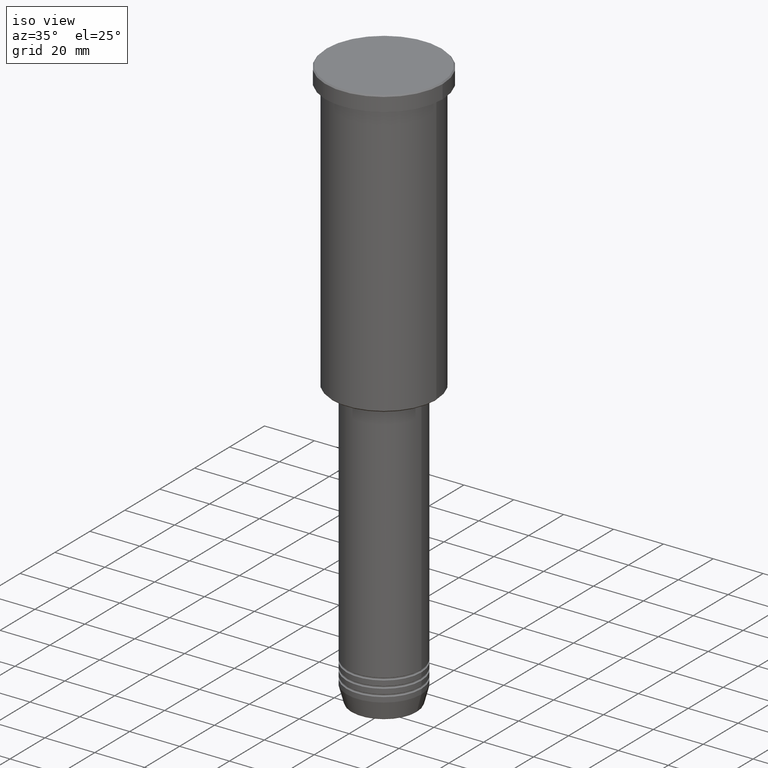
[diagram: clean part render]
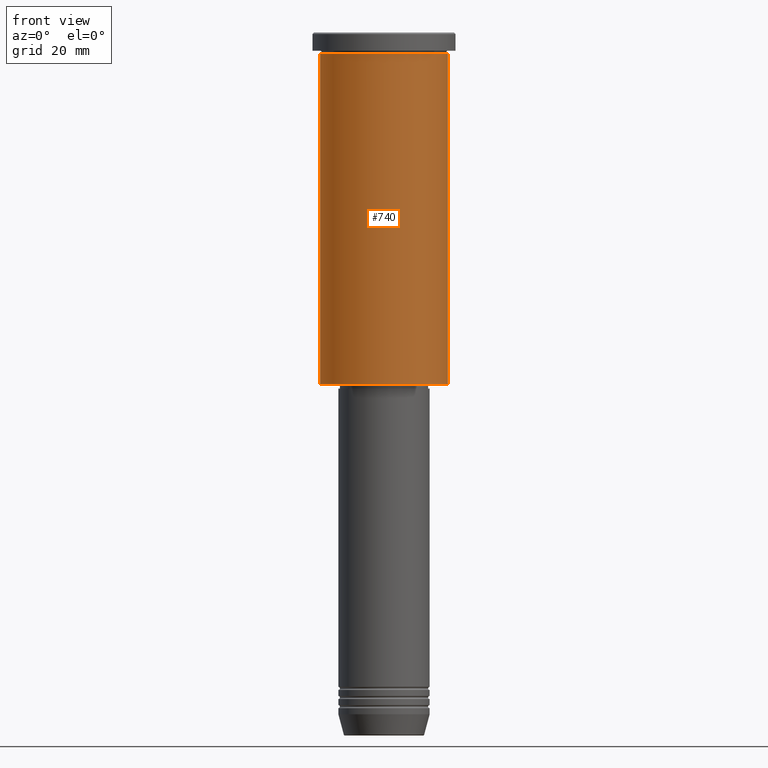
[diagram: tour spotlight — one face highlighted and labeled with its STEP entity id]
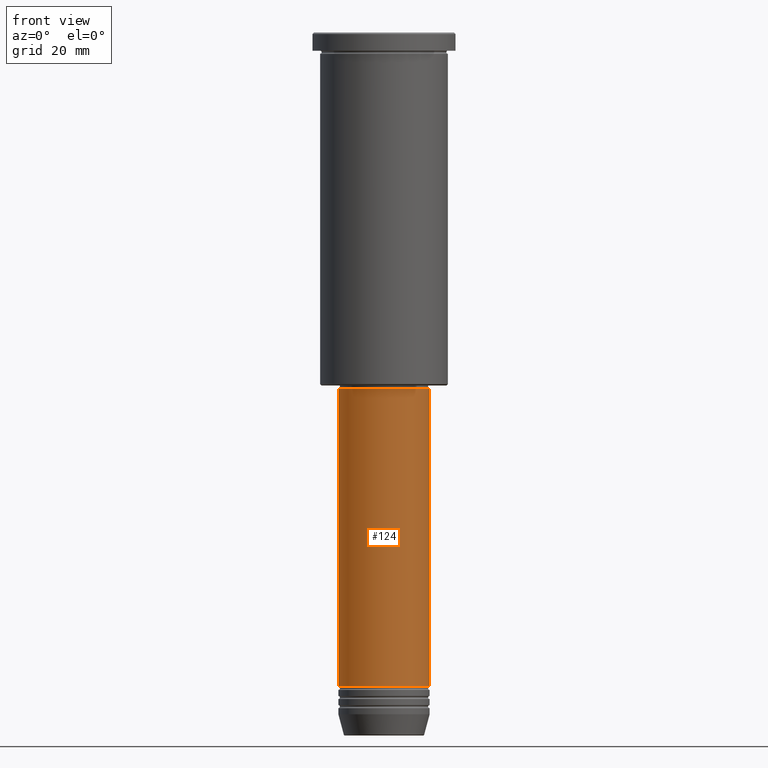
[diagram: tour spotlight — one face highlighted and labeled with its STEP entity id]
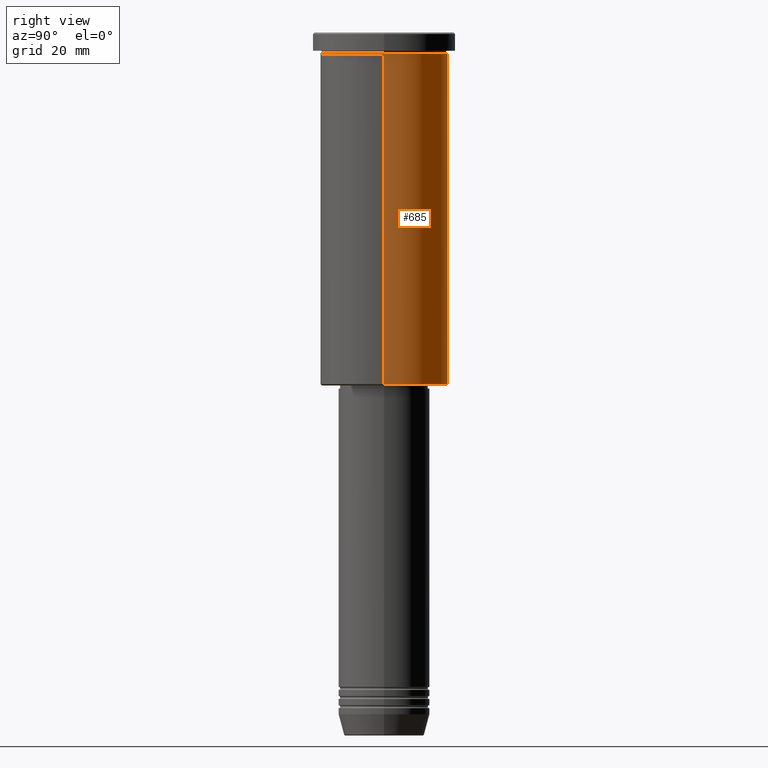
[diagram: tour spotlight — one face highlighted and labeled with its STEP entity id]
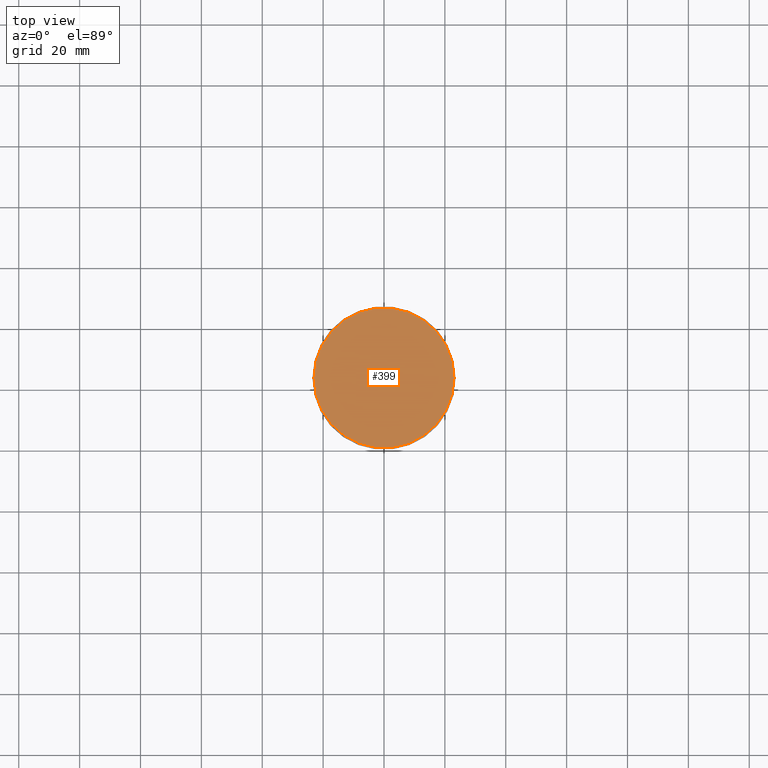
[diagram: tour spotlight — one face highlighted and labeled with its STEP entity id]
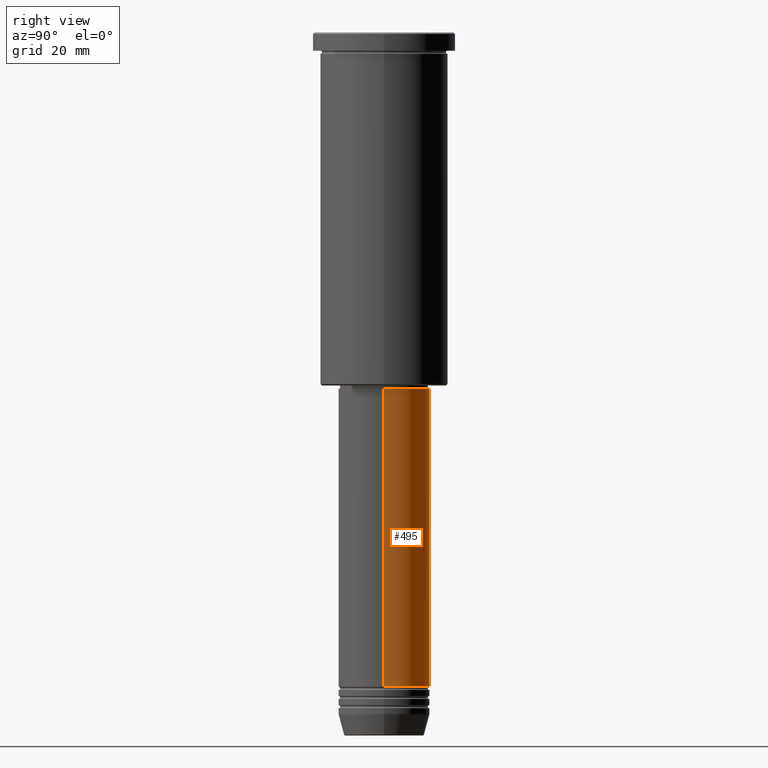
[diagram: tour spotlight — one face highlighted and labeled with its STEP entity id]
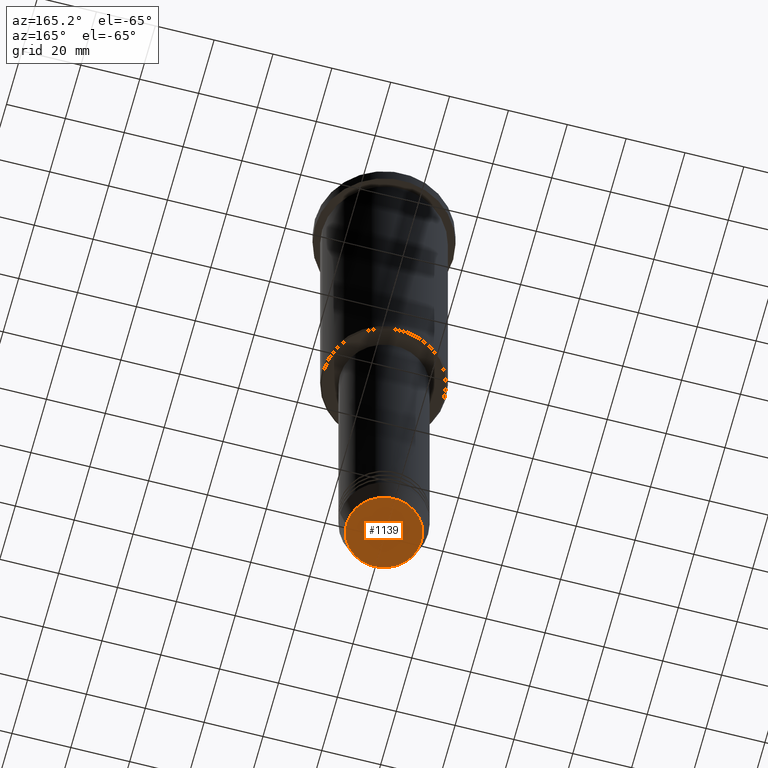
[diagram: tour spotlight — one face highlighted and labeled with its STEP entity id]
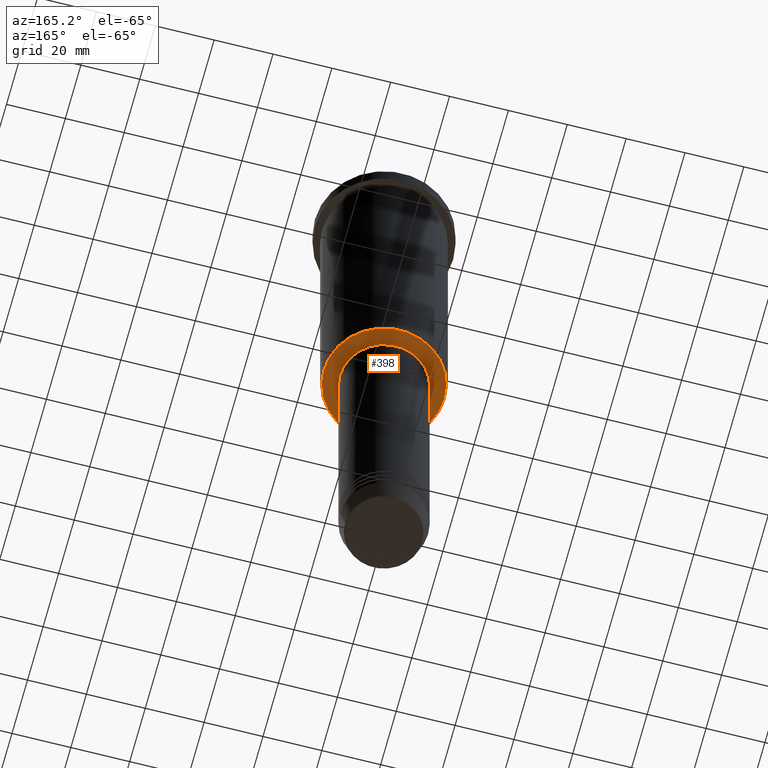
[diagram: tour spotlight — one face highlighted and labeled with its STEP entity id]
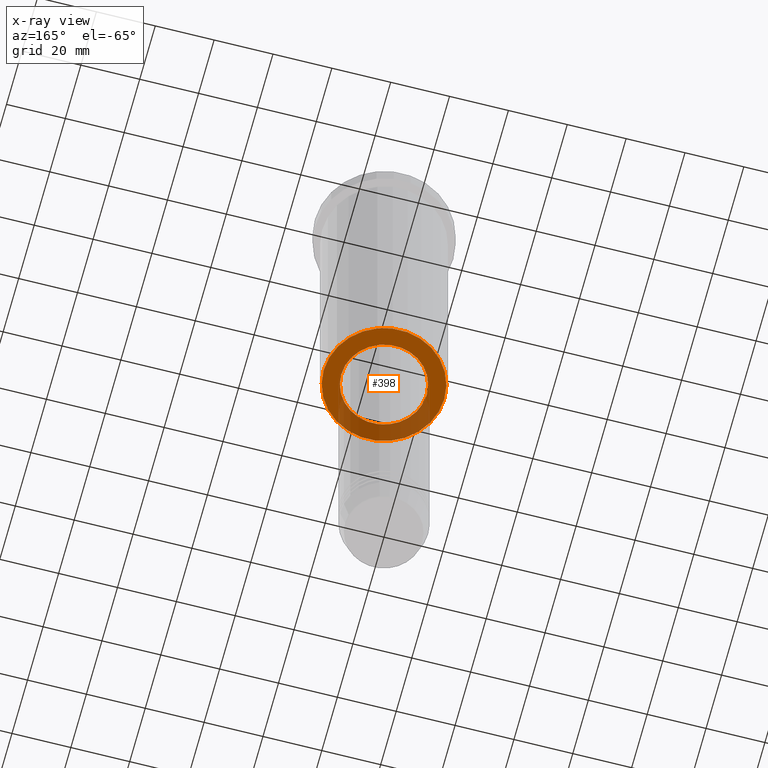
[diagram: x-ray of the same camera — body ghosted, this tour face saturated]
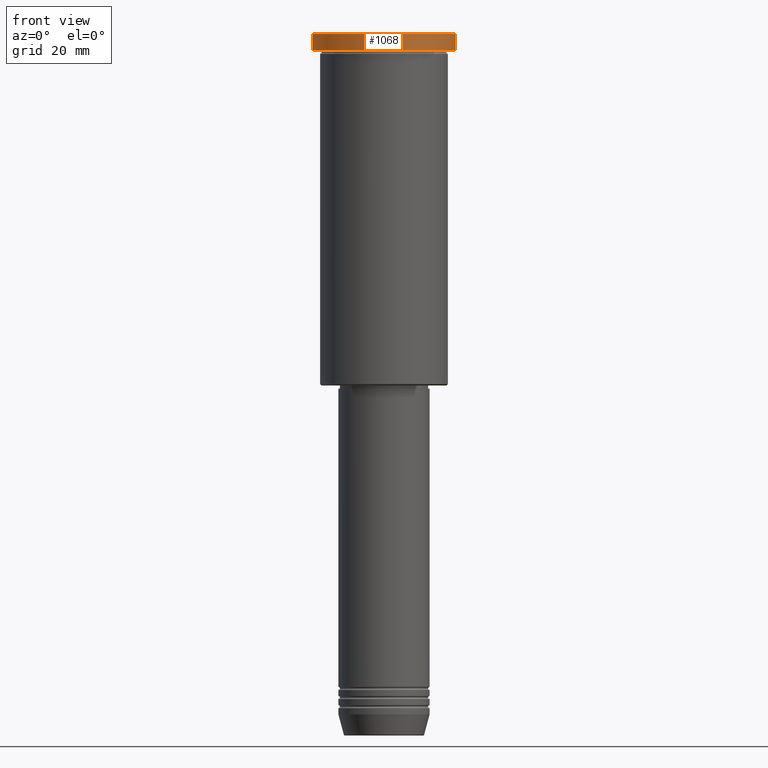
[diagram: tour spotlight — one face highlighted and labeled with its STEP entity id]
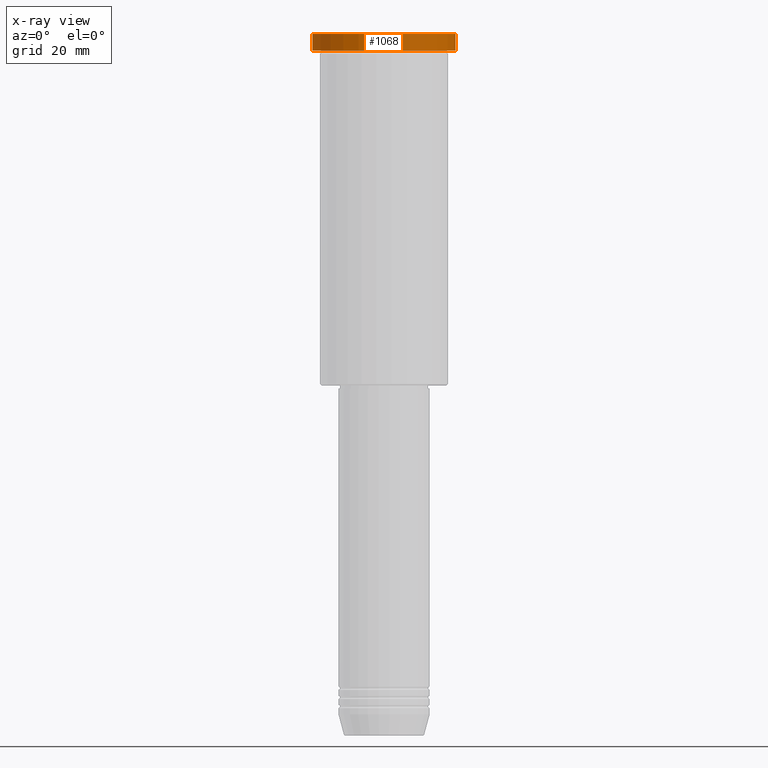
[diagram: x-ray of the same camera — body ghosted, this tour face saturated]
A machine part: a face-by-face anatomy tour. The part has 43 B-rep faces; the first image is the clean iso view, then the 8 largest visible faces are spotlighted one at a time (largest first), each with its STEP entity span.

Face 1 — front view, entity #740. In plain terms, the highlighted cylindrical surface (partial cylindrical patch) has radius 21 mm, axis along (-0, -0, 1).
Definition (entity closure, byte-faithful):
#55 = CIRCLE ( 'NONE', #469, 21.00000000000000000 ) ;
#112 = DIRECTION ( 'NONE',  ( 1.000000000000000000, 0.000000000000000000, 0.000000000000000000 ) ) ;
#128 = DIRECTION ( 'NONE',  ( -0.000000000000000000, -0.000000000000000000, 1.000000000000000000 ) ) ;
#139 = AXIS2_PLACEMENT_3D ( 'NONE', #757, #678, #220 ) ;
#184 = VECTOR ( 'NONE', #253, 1000.000000000000000 ) ;
#203 = AXIS2_PLACEMENT_3D ( 'NONE', #601, #346, #431 ) ;
#220 = DIRECTION ( 'NONE',  ( -1.000000000000000000, 0.000000000000000000, 0.000000000000000000 ) ) ;
#245 = CYLINDRICAL_SURFACE ( 'NONE', #203, 21.00000000000000000 ) ;
#247 = CARTESIAN_POINT ( 'NONE',  ( 21.00000000000000000, 0.000000000000000000, -115.4999999999999858 ) ) ;
#253 = DIRECTION ( 'NONE',  ( -0.000000000000000000, -0.000000000000000000, 1.000000000000000000 ) ) ;
#272 = VERTEX_POINT ( 'NONE', #247 ) ;
#294 = ORIENTED_EDGE ( 'NONE', *, *, #626, .T. ) ;
#320 = LINE ( 'NONE', #762, #812 ) ;
#325 = CARTESIAN_POINT ( 'NONE',  ( -21.00000000000000000, 2.571758278209441661E-15, 0.000000000000000000 ) ) ;
#345 = CARTESIAN_POINT ( 'NONE',  ( -21.00000000000000000, 2.571758278209441661E-15, -6.999999999999994671 ) ) ;
#346 = DIRECTION ( 'NONE',  ( -0.000000000000000000, -0.000000000000000000, 1.000000000000000000 ) ) ;
#431 = DIRECTION ( 'NONE',  ( 1.000000000000000000, 0.000000000000000000, 0.000000000000000000 ) ) ;
#469 = AXIS2_PLACEMENT_3D ( 'NONE', #487, #671, #112 ) ;
#487 = CARTESIAN_POINT ( 'NONE',  ( 0.000000000000000000, 0.000000000000000000, -6.999999999999994671 ) ) ;
#568 = EDGE_CURVE ( 'NONE', #1135, #581, #55, .T. ) ;
#581 = VERTEX_POINT ( 'NONE', #683 ) ;
#588 = ORIENTED_EDGE ( 'NONE', *, *, #568, .F. ) ;
#590 = VERTEX_POINT ( 'NONE', #767 ) ;
#591 = EDGE_CURVE ( 'NONE', #272, #581, #320, .T. ) ;
#601 = CARTESIAN_POINT ( 'NONE',  ( 0.000000000000000000, 0.000000000000000000, 0.000000000000000000 ) ) ;
#607 = EDGE_LOOP ( 'NONE', ( #709, #294, #1085, #588 ) ) ;
#614 = LINE ( 'NONE', #325, #184 ) ;
#626 = EDGE_CURVE ( 'NONE', #590, #272, #1020, .T. ) ;
#671 = DIRECTION ( 'NONE',  ( -0.000000000000000000, -0.000000000000000000, 1.000000000000000000 ) ) ;
#678 = DIRECTION ( 'NONE',  ( -0.000000000000000000, -0.000000000000000000, 1.000000000000000000 ) ) ;
#683 = CARTESIAN_POINT ( 'NONE',  ( 21.00000000000000000, 0.000000000000000000, -6.999999999999994671 ) ) ;
#705 = EDGE_CURVE ( 'NONE', #590, #1135, #614, .T. ) ;
#709 = ORIENTED_EDGE ( 'NONE', *, *, #705, .F. ) ;
#740 = ADVANCED_FACE ( 'NONE', ( #1077 ), #245, .T. ) ;
#757 = CARTESIAN_POINT ( 'NONE',  ( 0.000000000000000000, 0.000000000000000000, -115.4999999999999858 ) ) ;
#762 = CARTESIAN_POINT ( 'NONE',  ( 21.00000000000000000, 0.000000000000000000, 0.000000000000000000 ) ) ;
#767 = CARTESIAN_POINT ( 'NONE',  ( -21.00000000000000000, 2.571758278209441661E-15, -115.4999999999999858 ) ) ;
#812 = VECTOR ( 'NONE', #128, 1000.000000000000000 ) ;
#1020 = CIRCLE ( 'NONE', #139, 21.00000000000000000 ) ;
#1077 = FACE_OUTER_BOUND ( 'NONE', #607, .T. ) ;
#1085 = ORIENTED_EDGE ( 'NONE', *, *, #591, .T. ) ;
#1135 = VERTEX_POINT ( 'NONE', #345 ) ;

Face 2 — front view, entity #124. In plain terms, the highlighted cylindrical surface (partial cylindrical patch) has radius 15 mm, axis along (-0, -0, 1).
Definition (entity closure, byte-faithful):
#19 = AXIS2_PLACEMENT_3D ( 'NONE', #943, #321, #505 ) ;
#37 = CARTESIAN_POINT ( 'NONE',  ( 15.00000000000000000, 0.000000000000000000, 0.000000000000000000 ) ) ;
#46 = FACE_OUTER_BOUND ( 'NONE', #149, .T. ) ;
#64 = ORIENTED_EDGE ( 'NONE', *, *, #401, .F. ) ;
#70 = EDGE_CURVE ( 'NONE', #889, #935, #474, .T. ) ;
#87 = CARTESIAN_POINT ( 'NONE',  ( -15.00000000000000000, 1.836970198721029589E-15, -214.9999999999999716 ) ) ;
#97 = VECTOR ( 'NONE', #669, 1000.000000000000000 ) ;
#124 = ADVANCED_FACE ( 'NONE', ( #46 ), #1138, .T. ) ;
#149 = EDGE_LOOP ( 'NONE', ( #1075, #600, #200, #64 ) ) ;
#154 = EDGE_CURVE ( 'NONE', #889, #890, #259, .T. ) ;
#193 = CARTESIAN_POINT ( 'NONE',  ( 15.00000000000000000, 0.000000000000000000, -214.9999999999999716 ) ) ;
#194 = DIRECTION ( 'NONE',  ( 1.000000000000000000, 0.000000000000000000, 0.000000000000000000 ) ) ;
#200 = ORIENTED_EDGE ( 'NONE', *, *, #973, .T. ) ;
#259 = CIRCLE ( 'NONE', #19, 15.00000000000000000 ) ;
#288 = CARTESIAN_POINT ( 'NONE',  ( -15.00000000000000000, 1.836970198721029589E-15, -117.0000000000000000 ) ) ;
#321 = DIRECTION ( 'NONE',  ( -0.000000000000000000, -0.000000000000000000, 1.000000000000000000 ) ) ;
#369 = CIRCLE ( 'NONE', #692, 15.00000000000000000 ) ;
#401 = EDGE_CURVE ( 'NONE', #935, #478, #369, .T. ) ;
#421 = CARTESIAN_POINT ( 'NONE',  ( 0.000000000000000000, 0.000000000000000000, 0.000000000000000000 ) ) ;
#440 = DIRECTION ( 'NONE',  ( -0.000000000000000000, -0.000000000000000000, 1.000000000000000000 ) ) ;
#474 = LINE ( 'NONE', #838, #726 ) ;
#478 = VERTEX_POINT ( 'NONE', #642 ) ;
#498 = AXIS2_PLACEMENT_3D ( 'NONE', #421, #1043, #589 ) ;
#505 = DIRECTION ( 'NONE',  ( 1.000000000000000000, 0.000000000000000000, 0.000000000000000000 ) ) ;
#589 = DIRECTION ( 'NONE',  ( 1.000000000000000000, 0.000000000000000000, 0.000000000000000000 ) ) ;
#600 = ORIENTED_EDGE ( 'NONE', *, *, #154, .T. ) ;
#642 = CARTESIAN_POINT ( 'NONE',  ( 15.00000000000000000, 0.000000000000000000, -117.0000000000000000 ) ) ;
#669 = DIRECTION ( 'NONE',  ( -0.000000000000000000, -0.000000000000000000, 1.000000000000000000 ) ) ;
#692 = AXIS2_PLACEMENT_3D ( 'NONE', #926, #826, #194 ) ;
#726 = VECTOR ( 'NONE', #440, 1000.000000000000000 ) ;
#826 = DIRECTION ( 'NONE',  ( -0.000000000000000000, -0.000000000000000000, 1.000000000000000000 ) ) ;
#838 = CARTESIAN_POINT ( 'NONE',  ( -15.00000000000000000, 1.836970198721029589E-15, 0.000000000000000000 ) ) ;
#889 = VERTEX_POINT ( 'NONE', #87 ) ;
#890 = VERTEX_POINT ( 'NONE', #193 ) ;
#926 = CARTESIAN_POINT ( 'NONE',  ( 0.000000000000000000, 0.000000000000000000, -117.0000000000000000 ) ) ;
#935 = VERTEX_POINT ( 'NONE', #288 ) ;
#943 = CARTESIAN_POINT ( 'NONE',  ( 0.000000000000000000, 0.000000000000000000, -214.9999999999999716 ) ) ;
#947 = LINE ( 'NONE', #37, #97 ) ;
#973 = EDGE_CURVE ( 'NONE', #890, #478, #947, .T. ) ;
#1043 = DIRECTION ( 'NONE',  ( -0.000000000000000000, -0.000000000000000000, 1.000000000000000000 ) ) ;
#1075 = ORIENTED_EDGE ( 'NONE', *, *, #70, .F. ) ;
#1138 = CYLINDRICAL_SURFACE ( 'NONE', #498, 15.00000000000000000 ) ;

Face 3 — right view, entity #685. In plain terms, the highlighted cylindrical surface (partial cylindrical patch) has radius 21 mm, axis along (-0, -0, 1).
Definition (entity closure, byte-faithful):
#57 = EDGE_CURVE ( 'NONE', #272, #590, #104, .T. ) ;
#80 = EDGE_LOOP ( 'NONE', ( #228, #1144, #796, #759 ) ) ;
#104 = CIRCLE ( 'NONE', #454, 21.00000000000000000 ) ;
#113 = EDGE_CURVE ( 'NONE', #581, #1135, #157, .T. ) ;
#122 = DIRECTION ( 'NONE',  ( 1.000000000000000000, 0.000000000000000000, 0.000000000000000000 ) ) ;
#128 = DIRECTION ( 'NONE',  ( -0.000000000000000000, -0.000000000000000000, 1.000000000000000000 ) ) ;
#157 = CIRCLE ( 'NONE', #959, 21.00000000000000000 ) ;
#184 = VECTOR ( 'NONE', #253, 1000.000000000000000 ) ;
#224 = AXIS2_PLACEMENT_3D ( 'NONE', #504, #1051, #809 ) ;
#228 = ORIENTED_EDGE ( 'NONE', *, *, #57, .T. ) ;
#247 = CARTESIAN_POINT ( 'NONE',  ( 21.00000000000000000, 0.000000000000000000, -115.4999999999999858 ) ) ;
#253 = DIRECTION ( 'NONE',  ( -0.000000000000000000, -0.000000000000000000, 1.000000000000000000 ) ) ;
#262 = CYLINDRICAL_SURFACE ( 'NONE', #224, 21.00000000000000000 ) ;
#272 = VERTEX_POINT ( 'NONE', #247 ) ;
#320 = LINE ( 'NONE', #762, #812 ) ;
#325 = CARTESIAN_POINT ( 'NONE',  ( -21.00000000000000000, 2.571758278209441661E-15, 0.000000000000000000 ) ) ;
#345 = CARTESIAN_POINT ( 'NONE',  ( -21.00000000000000000, 2.571758278209441661E-15, -6.999999999999994671 ) ) ;
#454 = AXIS2_PLACEMENT_3D ( 'NONE', #651, #559, #927 ) ;
#504 = CARTESIAN_POINT ( 'NONE',  ( 0.000000000000000000, 0.000000000000000000, 0.000000000000000000 ) ) ;
#559 = DIRECTION ( 'NONE',  ( -0.000000000000000000, -0.000000000000000000, 1.000000000000000000 ) ) ;
#581 = VERTEX_POINT ( 'NONE', #683 ) ;
#590 = VERTEX_POINT ( 'NONE', #767 ) ;
#591 = EDGE_CURVE ( 'NONE', #272, #581, #320, .T. ) ;
#614 = LINE ( 'NONE', #325, #184 ) ;
#651 = CARTESIAN_POINT ( 'NONE',  ( 0.000000000000000000, 0.000000000000000000, -115.4999999999999858 ) ) ;
#683 = CARTESIAN_POINT ( 'NONE',  ( 21.00000000000000000, 0.000000000000000000, -6.999999999999994671 ) ) ;
#685 = ADVANCED_FACE ( 'NONE', ( #1156 ), #262, .T. ) ;
#705 = EDGE_CURVE ( 'NONE', #590, #1135, #614, .T. ) ;
#759 = ORIENTED_EDGE ( 'NONE', *, *, #591, .F. ) ;
#762 = CARTESIAN_POINT ( 'NONE',  ( 21.00000000000000000, 0.000000000000000000, 0.000000000000000000 ) ) ;
#767 = CARTESIAN_POINT ( 'NONE',  ( -21.00000000000000000, 2.571758278209441661E-15, -115.4999999999999858 ) ) ;
#796 = ORIENTED_EDGE ( 'NONE', *, *, #113, .F. ) ;
#809 = DIRECTION ( 'NONE',  ( 1.000000000000000000, 0.000000000000000000, 0.000000000000000000 ) ) ;
#812 = VECTOR ( 'NONE', #128, 1000.000000000000000 ) ;
#927 = DIRECTION ( 'NONE',  ( -1.000000000000000000, 0.000000000000000000, 0.000000000000000000 ) ) ;
#959 = AXIS2_PLACEMENT_3D ( 'NONE', #1111, #963, #122 ) ;
#963 = DIRECTION ( 'NONE',  ( -0.000000000000000000, -0.000000000000000000, 1.000000000000000000 ) ) ;
#1051 = DIRECTION ( 'NONE',  ( -0.000000000000000000, -0.000000000000000000, 1.000000000000000000 ) ) ;
#1111 = CARTESIAN_POINT ( 'NONE',  ( 0.000000000000000000, 0.000000000000000000, -6.999999999999994671 ) ) ;
#1135 = VERTEX_POINT ( 'NONE', #345 ) ;
#1144 = ORIENTED_EDGE ( 'NONE', *, *, #705, .T. ) ;
#1156 = FACE_OUTER_BOUND ( 'NONE', #80, .T. ) ;

Face 4 — top view, entity #399. In plain terms, the highlighted planar face has unit normal (0, -0, 1).
Definition (entity closure, byte-faithful):
#91 = DIRECTION ( 'NONE',  ( 1.000000000000000000, 0.000000000000000000, 0.000000000000000000 ) ) ;
#103 = VERTEX_POINT ( 'NONE', #483 ) ;
#269 = DIRECTION ( 'NONE',  ( -0.000000000000000000, -0.000000000000000000, 1.000000000000000000 ) ) ;
#307 = EDGE_LOOP ( 'NONE', ( #479, #349 ) ) ;
#309 = AXIS2_PLACEMENT_3D ( 'NONE', #377, #1089, #1001 ) ;
#331 = VERTEX_POINT ( 'NONE', #894 ) ;
#333 = AXIS2_PLACEMENT_3D ( 'NONE', #1058, #269, #960 ) ;
#349 = ORIENTED_EDGE ( 'NONE', *, *, #855, .T. ) ;
#359 = DIRECTION ( 'NONE',  ( -0.000000000000000000, -0.000000000000000000, 1.000000000000000000 ) ) ;
#377 = CARTESIAN_POINT ( 'NONE',  ( 0.000000000000000000, 0.000000000000000000, 0.000000000000000000 ) ) ;
#399 = ADVANCED_FACE ( 'NONE', ( #563 ), #1094, .T. ) ;
#455 = CARTESIAN_POINT ( 'NONE',  ( 0.000000000000000000, 0.000000000000000000, 0.000000000000000000 ) ) ;
#479 = ORIENTED_EDGE ( 'NONE', *, *, #776, .T. ) ;
#483 = CARTESIAN_POINT ( 'NONE',  ( 22.99999999999991118, 2.847303808017590617E-15, 0.000000000000000000 ) ) ;
#563 = FACE_OUTER_BOUND ( 'NONE', #307, .T. ) ;
#674 = CIRCLE ( 'NONE', #923, 22.99999999999991118 ) ;
#776 = EDGE_CURVE ( 'NONE', #331, #103, #1129, .T. ) ;
#855 = EDGE_CURVE ( 'NONE', #103, #331, #674, .T. ) ;
#894 = CARTESIAN_POINT ( 'NONE',  ( -22.99999999999991118, 0.000000000000000000, 0.000000000000000000 ) ) ;
#923 = AXIS2_PLACEMENT_3D ( 'NONE', #455, #359, #91 ) ;
#960 = DIRECTION ( 'NONE',  ( 1.000000000000000000, 0.000000000000000000, 0.000000000000000000 ) ) ;
#1001 = DIRECTION ( 'NONE',  ( 1.000000000000000000, 0.000000000000000000, 0.000000000000000000 ) ) ;
#1058 = CARTESIAN_POINT ( 'NONE',  ( 0.000000000000000000, 0.000000000000000000, 0.000000000000000000 ) ) ;
#1089 = DIRECTION ( 'NONE',  ( 0.000000000000000000, -0.000000000000000000, 1.000000000000000000 ) ) ;
#1094 = PLANE ( 'NONE',  #309 ) ;
#1129 = CIRCLE ( 'NONE', #333, 22.99999999999991118 ) ;

Face 5 — right view, entity #495. In plain terms, the highlighted cylindrical surface (partial cylindrical patch) has radius 15 mm, axis along (-0, -0, 1).
Definition (entity closure, byte-faithful):
#37 = CARTESIAN_POINT ( 'NONE',  ( 15.00000000000000000, 0.000000000000000000, 0.000000000000000000 ) ) ;
#70 = EDGE_CURVE ( 'NONE', #889, #935, #474, .T. ) ;
#87 = CARTESIAN_POINT ( 'NONE',  ( -15.00000000000000000, 1.836970198721029589E-15, -214.9999999999999716 ) ) ;
#97 = VECTOR ( 'NONE', #669, 1000.000000000000000 ) ;
#179 = DIRECTION ( 'NONE',  ( -0.000000000000000000, -0.000000000000000000, 1.000000000000000000 ) ) ;
#189 = CARTESIAN_POINT ( 'NONE',  ( 0.000000000000000000, 0.000000000000000000, 0.000000000000000000 ) ) ;
#193 = CARTESIAN_POINT ( 'NONE',  ( 15.00000000000000000, 0.000000000000000000, -214.9999999999999716 ) ) ;
#255 = ORIENTED_EDGE ( 'NONE', *, *, #296, .F. ) ;
#288 = CARTESIAN_POINT ( 'NONE',  ( -15.00000000000000000, 1.836970198721029589E-15, -117.0000000000000000 ) ) ;
#293 = CIRCLE ( 'NONE', #901, 15.00000000000000000 ) ;
#296 = EDGE_CURVE ( 'NONE', #478, #935, #293, .T. ) ;
#362 = ORIENTED_EDGE ( 'NONE', *, *, #1121, .T. ) ;
#440 = DIRECTION ( 'NONE',  ( -0.000000000000000000, -0.000000000000000000, 1.000000000000000000 ) ) ;
#444 = DIRECTION ( 'NONE',  ( 1.000000000000000000, 0.000000000000000000, 0.000000000000000000 ) ) ;
#474 = LINE ( 'NONE', #838, #726 ) ;
#478 = VERTEX_POINT ( 'NONE', #642 ) ;
#495 = ADVANCED_FACE ( 'NONE', ( #1008 ), #823, .T. ) ;
#548 = DIRECTION ( 'NONE',  ( -0.000000000000000000, -0.000000000000000000, 1.000000000000000000 ) ) ;
#552 = EDGE_LOOP ( 'NONE', ( #362, #1118, #255, #877 ) ) ;
#554 = AXIS2_PLACEMENT_3D ( 'NONE', #189, #548, #556 ) ;
#556 = DIRECTION ( 'NONE',  ( 1.000000000000000000, 0.000000000000000000, 0.000000000000000000 ) ) ;
#621 = DIRECTION ( 'NONE',  ( -0.000000000000000000, -0.000000000000000000, 1.000000000000000000 ) ) ;
#631 = CARTESIAN_POINT ( 'NONE',  ( 0.000000000000000000, 0.000000000000000000, -117.0000000000000000 ) ) ;
#642 = CARTESIAN_POINT ( 'NONE',  ( 15.00000000000000000, 0.000000000000000000, -117.0000000000000000 ) ) ;
#669 = DIRECTION ( 'NONE',  ( -0.000000000000000000, -0.000000000000000000, 1.000000000000000000 ) ) ;
#726 = VECTOR ( 'NONE', #440, 1000.000000000000000 ) ;
#823 = CYLINDRICAL_SURFACE ( 'NONE', #554, 15.00000000000000000 ) ;
#838 = CARTESIAN_POINT ( 'NONE',  ( -15.00000000000000000, 1.836970198721029589E-15, 0.000000000000000000 ) ) ;
#877 = ORIENTED_EDGE ( 'NONE', *, *, #973, .F. ) ;
#878 = DIRECTION ( 'NONE',  ( 1.000000000000000000, 0.000000000000000000, 0.000000000000000000 ) ) ;
#889 = VERTEX_POINT ( 'NONE', #87 ) ;
#890 = VERTEX_POINT ( 'NONE', #193 ) ;
#901 = AXIS2_PLACEMENT_3D ( 'NONE', #631, #179, #444 ) ;
#935 = VERTEX_POINT ( 'NONE', #288 ) ;
#946 = CIRCLE ( 'NONE', #967, 15.00000000000000000 ) ;
#947 = LINE ( 'NONE', #37, #97 ) ;
#967 = AXIS2_PLACEMENT_3D ( 'NONE', #980, #621, #878 ) ;
#973 = EDGE_CURVE ( 'NONE', #890, #478, #947, .T. ) ;
#980 = CARTESIAN_POINT ( 'NONE',  ( 0.000000000000000000, 0.000000000000000000, -214.9999999999999716 ) ) ;
#1008 = FACE_OUTER_BOUND ( 'NONE', #552, .T. ) ;
#1118 = ORIENTED_EDGE ( 'NONE', *, *, #70, .T. ) ;
#1121 = EDGE_CURVE ( 'NONE', #890, #889, #946, .T. ) ;

Face 6 — auxiliary view, entity #1139. In plain terms, the highlighted planar face has unit normal (0, -0, 1).
Definition (entity closure, byte-faithful):
#15 = CARTESIAN_POINT ( 'NONE',  ( 0.000000000000000000, 0.000000000000000000, -230.9999999999999716 ) ) ;
#24 = ORIENTED_EDGE ( 'NONE', *, *, #1087, .T. ) ;
#130 = VERTEX_POINT ( 'NONE', #866 ) ;
#134 = CARTESIAN_POINT ( 'NONE',  ( 0.000000000000000000, 0.000000000000000000, -230.9999999999999716 ) ) ;
#137 = EDGE_LOOP ( 'NONE', ( #1126, #24 ) ) ;
#202 = VERTEX_POINT ( 'NONE', #673 ) ;
#251 = DIRECTION ( 'NONE',  ( 0.000000000000000000, -0.000000000000000000, 1.000000000000000000 ) ) ;
#332 = FACE_OUTER_BOUND ( 'NONE', #137, .T. ) ;
#338 = AXIS2_PLACEMENT_3D ( 'NONE', #966, #251, #697 ) ;
#450 = AXIS2_PLACEMENT_3D ( 'NONE', #134, #477, #840 ) ;
#468 = CIRCLE ( 'NONE', #450, 12.74069215899266538 ) ;
#477 = DIRECTION ( 'NONE',  ( 0.000000000000000000, 0.000000000000000000, -1.000000000000000000 ) ) ;
#565 = DIRECTION ( 'NONE',  ( 0.000000000000000000, 0.000000000000000000, -1.000000000000000000 ) ) ;
#634 = EDGE_CURVE ( 'NONE', #130, #202, #468, .T. ) ;
#643 = CIRCLE ( 'NONE', #1176, 12.74069215899266538 ) ;
#659 = DIRECTION ( 'NONE',  ( 1.000000000000000000, 0.000000000000000000, 0.000000000000000000 ) ) ;
#673 = CARTESIAN_POINT ( 'NONE',  ( -12.74069215899266538, 1.589857736427681824E-15, -230.9999999999999716 ) ) ;
#697 = DIRECTION ( 'NONE',  ( 1.000000000000000000, 0.000000000000000000, 0.000000000000000000 ) ) ;
#840 = DIRECTION ( 'NONE',  ( 1.000000000000000000, 0.000000000000000000, 0.000000000000000000 ) ) ;
#866 = CARTESIAN_POINT ( 'NONE',  ( 12.74069215899266538, 0.000000000000000000, -230.9999999999999716 ) ) ;
#966 = CARTESIAN_POINT ( 'NONE',  ( 0.000000000000000000, 0.000000000000000000, -230.9999999999999716 ) ) ;
#1087 = EDGE_CURVE ( 'NONE', #202, #130, #643, .T. ) ;
#1126 = ORIENTED_EDGE ( 'NONE', *, *, #634, .T. ) ;
#1139 = ADVANCED_FACE ( 'NONE', ( #332 ), #1162, .F. ) ;
#1162 = PLANE ( 'NONE',  #338 ) ;
#1176 = AXIS2_PLACEMENT_3D ( 'NONE', #15, #565, #659 ) ;

Face 7 — auxiliary view, entity #398. An x-ray twin of the same camera follows (body ghosted, this face saturated) — the face is partly hidden behind the body. In plain terms, the highlighted planar face has unit normal (0, 0, -1).
Definition (entity closure, byte-faithful):
#51 = DIRECTION ( 'NONE',  ( -0.000000000000000000, -0.000000000000000000, 1.000000000000000000 ) ) ;
#62 = ORIENTED_EDGE ( 'NONE', *, *, #1154, .T. ) ;
#69 = CARTESIAN_POINT ( 'NONE',  ( -20.50000000000001776, 2.541142108230759057E-15, -115.9999999999999858 ) ) ;
#77 = AXIS2_PLACEMENT_3D ( 'NONE', #1104, #654, #551 ) ;
#92 = FACE_OUTER_BOUND ( 'NONE', #549, .T. ) ;
#101 = CARTESIAN_POINT ( 'NONE',  ( 0.000000000000000000, 21.00000000000000000, -115.9999999999999858 ) ) ;
#121 = CARTESIAN_POINT ( 'NONE',  ( 20.50000000000001776, 0.000000000000000000, -115.9999999999999858 ) ) ;
#133 = ORIENTED_EDGE ( 'NONE', *, *, #375, .T. ) ;
#188 = CIRCLE ( 'NONE', #434, 14.49999999999999822 ) ;
#209 = PLANE ( 'NONE',  #811 ) ;
#256 = DIRECTION ( 'NONE',  ( 1.000000000000000000, 0.000000000000000000, 0.000000000000000000 ) ) ;
#270 = VERTEX_POINT ( 'NONE', #69 ) ;
#289 = DIRECTION ( 'NONE',  ( -1.000000000000000000, 0.000000000000000000, -0.000000000000000000 ) ) ;
#335 = CIRCLE ( 'NONE', #543, 20.50000000000001776 ) ;
#364 = EDGE_CURVE ( 'NONE', #400, #620, #672, .T. ) ;
#368 = CARTESIAN_POINT ( 'NONE',  ( -14.49999999999999822, 1.775737858763662015E-15, -115.9999999999999858 ) ) ;
#375 = EDGE_CURVE ( 'NONE', #270, #528, #388, .T. ) ;
#388 = CIRCLE ( 'NONE', #1052, 20.50000000000001776 ) ;
#391 = DIRECTION ( 'NONE',  ( -1.000000000000000000, 0.000000000000000000, 0.000000000000000000 ) ) ;
#398 = ADVANCED_FACE ( 'NONE', ( #92, #1084 ), #209, .T. ) ;
#400 = VERTEX_POINT ( 'NONE', #368 ) ;
#434 = AXIS2_PLACEMENT_3D ( 'NONE', #1062, #51, #256 ) ;
#446 = ORIENTED_EDGE ( 'NONE', *, *, #364, .T. ) ;
#461 = DIRECTION ( 'NONE',  ( 0.000000000000000000, 0.000000000000000000, -1.000000000000000000 ) ) ;
#492 = CARTESIAN_POINT ( 'NONE',  ( 14.49999999999999822, 0.000000000000000000, -115.9999999999999858 ) ) ;
#494 = EDGE_LOOP ( 'NONE', ( #62, #446 ) ) ;
#528 = VERTEX_POINT ( 'NONE', #121 ) ;
#543 = AXIS2_PLACEMENT_3D ( 'NONE', #844, #1021, #391 ) ;
#549 = EDGE_LOOP ( 'NONE', ( #994, #133 ) ) ;
#551 = DIRECTION ( 'NONE',  ( 1.000000000000000000, 0.000000000000000000, 0.000000000000000000 ) ) ;
#620 = VERTEX_POINT ( 'NONE', #492 ) ;
#654 = DIRECTION ( 'NONE',  ( -0.000000000000000000, -0.000000000000000000, 1.000000000000000000 ) ) ;
#672 = CIRCLE ( 'NONE', #77, 14.49999999999999822 ) ;
#811 = AXIS2_PLACEMENT_3D ( 'NONE', #101, #461, #289 ) ;
#844 = CARTESIAN_POINT ( 'NONE',  ( 0.000000000000000000, 0.000000000000000000, -115.9999999999999858 ) ) ;
#913 = DIRECTION ( 'NONE',  ( 0.000000000000000000, 0.000000000000000000, -1.000000000000000000 ) ) ;
#931 = DIRECTION ( 'NONE',  ( -1.000000000000000000, 0.000000000000000000, 0.000000000000000000 ) ) ;
#994 = ORIENTED_EDGE ( 'NONE', *, *, #1018, .T. ) ;
#1011 = CARTESIAN_POINT ( 'NONE',  ( 0.000000000000000000, 0.000000000000000000, -115.9999999999999858 ) ) ;
#1018 = EDGE_CURVE ( 'NONE', #528, #270, #335, .T. ) ;
#1021 = DIRECTION ( 'NONE',  ( 0.000000000000000000, 0.000000000000000000, -1.000000000000000000 ) ) ;
#1052 = AXIS2_PLACEMENT_3D ( 'NONE', #1011, #913, #931 ) ;
#1062 = CARTESIAN_POINT ( 'NONE',  ( 0.000000000000000000, 0.000000000000000000, -115.9999999999999858 ) ) ;
#1084 = FACE_BOUND ( 'NONE', #494, .T. ) ;
#1104 = CARTESIAN_POINT ( 'NONE',  ( 0.000000000000000000, 0.000000000000000000, -115.9999999999999858 ) ) ;
#1154 = EDGE_CURVE ( 'NONE', #620, #400, #188, .T. ) ;

Face 8 — front view, entity #1068. An x-ray twin of the same camera follows (body ghosted, this face saturated) — the face is partly hidden behind the body. In plain terms, the highlighted cylindrical surface (partial cylindrical patch) has radius 23.5 mm, axis along (-0, -0, 1).
Definition (entity closure, byte-faithful):
#38 = CIRCLE ( 'NONE', #96, 23.50000000000000000 ) ;
#48 = LINE ( 'NONE', #787, #902 ) ;
#56 = DIRECTION ( 'NONE',  ( -0.000000000000000000, -0.000000000000000000, 1.000000000000000000 ) ) ;
#66 = ORIENTED_EDGE ( 'NONE', *, *, #206, .T. ) ;
#68 = CARTESIAN_POINT ( 'NONE',  ( -23.50000000000000000, 2.877919977996280320E-15, -5.999999999999994671 ) ) ;
#74 = DIRECTION ( 'NONE',  ( 1.000000000000000000, 0.000000000000000000, 0.000000000000000000 ) ) ;
#82 = DIRECTION ( 'NONE',  ( 1.000000000000000000, 0.000000000000000000, 0.000000000000000000 ) ) ;
#96 = AXIS2_PLACEMENT_3D ( 'NONE', #334, #698, #82 ) ;
#177 = CARTESIAN_POINT ( 'NONE',  ( 23.50000000000000000, 0.000000000000000000, -5.999999999999994671 ) ) ;
#191 = EDGE_LOOP ( 'NONE', ( #919, #871, #66, #808 ) ) ;
#206 = EDGE_CURVE ( 'NONE', #854, #250, #582, .T. ) ;
#210 = VERTEX_POINT ( 'NONE', #1060 ) ;
#214 = DIRECTION ( 'NONE',  ( -0.000000000000000000, -0.000000000000000000, 1.000000000000000000 ) ) ;
#250 = VERTEX_POINT ( 'NONE', #615 ) ;
#279 = VECTOR ( 'NONE', #56, 1000.000000000000000 ) ;
#334 = CARTESIAN_POINT ( 'NONE',  ( 0.000000000000000000, 0.000000000000000000, -5.999999999999994671 ) ) ;
#402 = FACE_OUTER_BOUND ( 'NONE', #191, .T. ) ;
#451 = AXIS2_PLACEMENT_3D ( 'NONE', #1128, #214, #1040 ) ;
#558 = AXIS2_PLACEMENT_3D ( 'NONE', #1000, #1010, #74 ) ;
#582 = LINE ( 'NONE', #789, #279 ) ;
#615 = CARTESIAN_POINT ( 'NONE',  ( 23.50000000000000000, 0.000000000000000000, -0.5000000000000837108 ) ) ;
#623 = DIRECTION ( 'NONE',  ( -0.000000000000000000, -0.000000000000000000, 1.000000000000000000 ) ) ;
#698 = DIRECTION ( 'NONE',  ( -0.000000000000000000, -0.000000000000000000, 1.000000000000000000 ) ) ;
#700 = EDGE_CURVE ( 'NONE', #730, #210, #48, .T. ) ;
#730 = VERTEX_POINT ( 'NONE', #68 ) ;
#764 = CYLINDRICAL_SURFACE ( 'NONE', #451, 23.50000000000000000 ) ;
#787 = CARTESIAN_POINT ( 'NONE',  ( -23.50000000000000000, 2.877919977996280320E-15, 0.000000000000000000 ) ) ;
#789 = CARTESIAN_POINT ( 'NONE',  ( 23.50000000000000000, 0.000000000000000000, 0.000000000000000000 ) ) ;
#805 = EDGE_CURVE ( 'NONE', #730, #854, #38, .T. ) ;
#808 = ORIENTED_EDGE ( 'NONE', *, *, #958, .T. ) ;
#854 = VERTEX_POINT ( 'NONE', #177 ) ;
#871 = ORIENTED_EDGE ( 'NONE', *, *, #805, .T. ) ;
#902 = VECTOR ( 'NONE', #623, 1000.000000000000000 ) ;
#919 = ORIENTED_EDGE ( 'NONE', *, *, #700, .F. ) ;
#958 = EDGE_CURVE ( 'NONE', #250, #210, #1073, .T. ) ;
#1000 = CARTESIAN_POINT ( 'NONE',  ( 0.000000000000000000, 0.000000000000000000, -0.5000000000000837108 ) ) ;
#1010 = DIRECTION ( 'NONE',  ( 0.000000000000000000, 0.000000000000000000, -1.000000000000000000 ) ) ;
#1040 = DIRECTION ( 'NONE',  ( 1.000000000000000000, 0.000000000000000000, 0.000000000000000000 ) ) ;
#1060 = CARTESIAN_POINT ( 'NONE',  ( -23.50000000000000000, 2.877919977996280320E-15, -0.5000000000000837108 ) ) ;
#1068 = ADVANCED_FACE ( 'NONE', ( #402 ), #764, .T. ) ;
#1073 = CIRCLE ( 'NONE', #558, 23.50000000000000000 ) ;
#1128 = CARTESIAN_POINT ( 'NONE',  ( 0.000000000000000000, 0.000000000000000000, 0.000000000000000000 ) ) ;